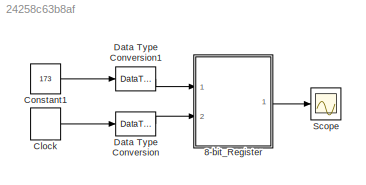
MODEL slx_24258c63b8af
KIND model
CONFIG AbsTol = auto
CONFIG EnableMultiTasking = off
CONFIG FixedStep = 1
CONFIG MaxStep = auto
CONFIG MinStep = auto
CONFIG RelTol = 1e-3
CONFIG SampleTimeConstraint = Unconstrained
CONFIG Solver = FixedStepDiscrete
CONFIG SolverName = FixedStepDiscrete
CONFIG StartTime = 0.0
CONFIG StopTime = 20.0
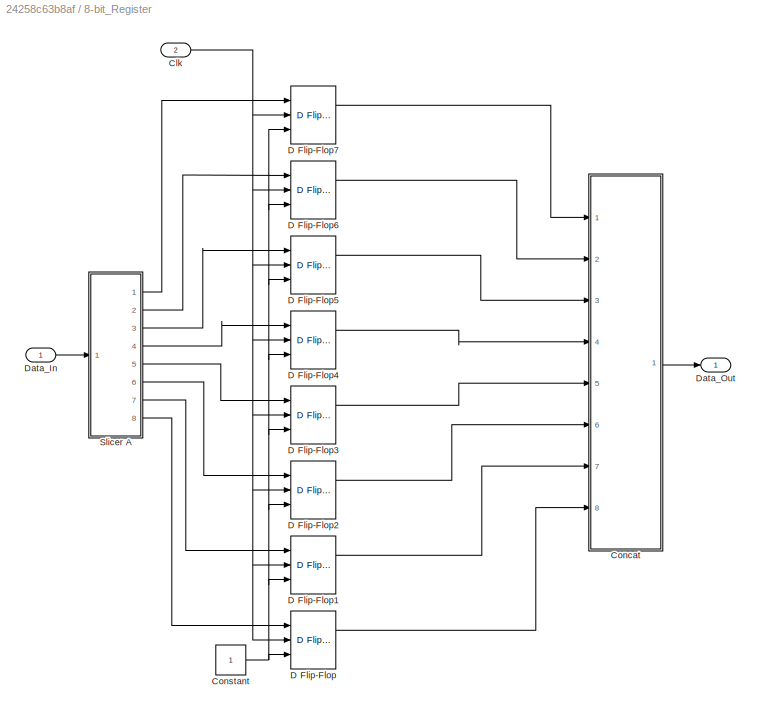
BLOCK [SubSystem] 8-bit_Register
  Ports = [2, 1]
  RequestExecContextInheritance = off
BLOCK [Inport] 8-bit_Register/Clk
  IconDisplay = Port number
  Port = 2
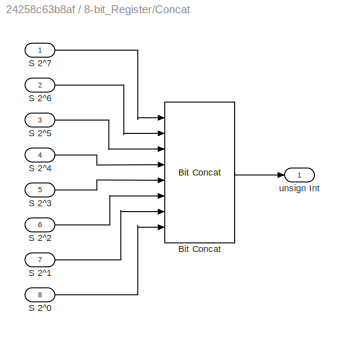
BLOCK [SubSystem] 8-bit_Register/Concat
  Ports = [8, 1]
  RequestExecContextInheritance = off
BLOCK [Reference] 8-bit_Register/Concat/Bit Concat  REF=hdlsllib/Logic and Bit
Operations/Bit Concat
  Ports = [8, 1]
  SourceBlock = hdlsllib/Logic and Bit\nOperations/Bit Concat
  SourceProductBaseCode = HD
  SourceProductName = HDL Coder
  SourceType = Bit Concat
BLOCK [Inport] 8-bit_Register/Concat/S 2^0
  IconDisplay = Port number
  Port = 8
BLOCK [Inport] 8-bit_Register/Concat/S 2^1
  IconDisplay = Port number
  Port = 7
BLOCK [Inport] 8-bit_Register/Concat/S 2^2
  IconDisplay = Port number
  Port = 6
BLOCK [Inport] 8-bit_Register/Concat/S 2^3
  IconDisplay = Port number
  Port = 5
BLOCK [Inport] 8-bit_Register/Concat/S 2^4
  IconDisplay = Port number
  Port = 4
BLOCK [Inport] 8-bit_Register/Concat/S 2^5
  IconDisplay = Port number
  Port = 3
BLOCK [Inport] 8-bit_Register/Concat/S 2^6
  IconDisplay = Port number
  Port = 2
BLOCK [Inport] 8-bit_Register/Concat/S 2^7
  IconDisplay = Port number
BLOCK [Outport] 8-bit_Register/Concat/unsign Int
  IconDisplay = Port number
BLOCK [Constant] 8-bit_Register/Constant
  OutDataTypeStr = boolean
  SampleTime = 1
BLOCK [Reference] 8-bit_Register/D Flip-Flop  REF=simulink_extras/Flip Flops/D Flip-Flop
  Ports = [3, 2]
  SourceBlock = simulink_extras/Flip Flops/D Flip-Flop
  SourceProductBaseCode = SL
  SourceProductName = Simulink
  SourceType = DFlipFlop
BLOCK [Reference] 8-bit_Register/D Flip-Flop1  REF=simulink_extras/Flip Flops/D Flip-Flop
  Ports = [3, 2]
  SourceBlock = simulink_extras/Flip Flops/D Flip-Flop
  SourceProductBaseCode = SL
  SourceProductName = Simulink
  SourceType = DFlipFlop
BLOCK [Reference] 8-bit_Register/D Flip-Flop2  REF=simulink_extras/Flip Flops/D Flip-Flop
  Ports = [3, 2]
  SourceBlock = simulink_extras/Flip Flops/D Flip-Flop
  SourceProductBaseCode = SL
  SourceProductName = Simulink
  SourceType = DFlipFlop
BLOCK [Reference] 8-bit_Register/D Flip-Flop3  REF=simulink_extras/Flip Flops/D Flip-Flop
  Ports = [3, 2]
  SourceBlock = simulink_extras/Flip Flops/D Flip-Flop
  SourceProductBaseCode = SL
  SourceProductName = Simulink
  SourceType = DFlipFlop
BLOCK [Reference] 8-bit_Register/D Flip-Flop4  REF=simulink_extras/Flip Flops/D Flip-Flop
  Ports = [3, 2]
  SourceBlock = simulink_extras/Flip Flops/D Flip-Flop
  SourceProductBaseCode = SL
  SourceProductName = Simulink
  SourceType = DFlipFlop
BLOCK [Reference] 8-bit_Register/D Flip-Flop5  REF=simulink_extras/Flip Flops/D Flip-Flop
  Ports = [3, 2]
  SourceBlock = simulink_extras/Flip Flops/D Flip-Flop
  SourceProductBaseCode = SL
  SourceProductName = Simulink
  SourceType = DFlipFlop
BLOCK [Reference] 8-bit_Register/D Flip-Flop6  REF=simulink_extras/Flip Flops/D Flip-Flop
  Ports = [3, 2]
  SourceBlock = simulink_extras/Flip Flops/D Flip-Flop
  SourceProductBaseCode = SL
  SourceProductName = Simulink
  SourceType = DFlipFlop
BLOCK [Reference] 8-bit_Register/D Flip-Flop7  REF=simulink_extras/Flip Flops/D Flip-Flop
  Ports = [3, 2]
  SourceBlock = simulink_extras/Flip Flops/D Flip-Flop
  SourceProductBaseCode = SL
  SourceProductName = Simulink
  SourceType = DFlipFlop
BLOCK [Inport] 8-bit_Register/Data_In
  IconDisplay = Port number
  OutDataTypeStr = uint8
BLOCK [Outport] 8-bit_Register/Data_Out
  IconDisplay = Port number
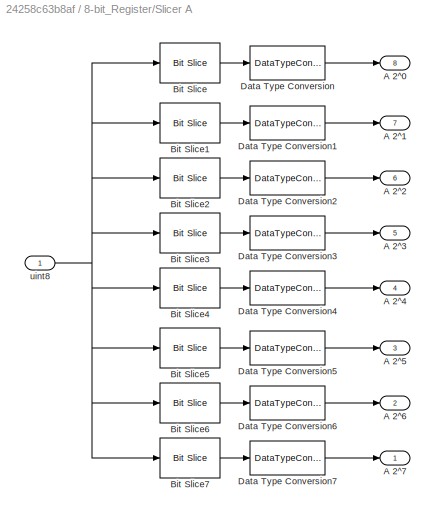
BLOCK [SubSystem] 8-bit_Register/Slicer A
  Ports = [1, 8]
  RequestExecContextInheritance = off
BLOCK [Outport] 8-bit_Register/Slicer A/A 2^0 
  IconDisplay = Port number
  Port = 8
BLOCK [Outport] 8-bit_Register/Slicer A/A 2^1
  IconDisplay = Port number
  Port = 7
BLOCK [Outport] 8-bit_Register/Slicer A/A 2^2
  IconDisplay = Port number
  Port = 6
BLOCK [Outport] 8-bit_Register/Slicer A/A 2^3
  IconDisplay = Port number
  Port = 5
BLOCK [Outport] 8-bit_Register/Slicer A/A 2^4
  IconDisplay = Port number
  Port = 4
BLOCK [Outport] 8-bit_Register/Slicer A/A 2^5
  IconDisplay = Port number
  Port = 3
BLOCK [Outport] 8-bit_Register/Slicer A/A 2^6
  IconDisplay = Port number
  Port = 2
BLOCK [Outport] 8-bit_Register/Slicer A/A 2^7
  IconDisplay = Port number
BLOCK [Reference] 8-bit_Register/Slicer A/Bit Slice  REF=hdlsllib/Logic and Bit
Operations/Bit Slice
  Ports = [1, 1]
  SourceBlock = hdlsllib/Logic and Bit\nOperations/Bit Slice
  SourceProductBaseCode = HD
  SourceProductName = HDL Coder
  SourceType = Bit Slice
BLOCK [Reference] 8-bit_Register/Slicer A/Bit Slice1  REF=hdlsllib/Logic and Bit
Operations/Bit Slice
  Ports = [1, 1]
  SourceBlock = hdlsllib/Logic and Bit\nOperations/Bit Slice
  SourceProductBaseCode = HD
  SourceProductName = HDL Coder
  SourceType = Bit Slice
BLOCK [Reference] 8-bit_Register/Slicer A/Bit Slice2  REF=hdlsllib/Logic and Bit
Operations/Bit Slice
  Ports = [1, 1]
  SourceBlock = hdlsllib/Logic and Bit\nOperations/Bit Slice
  SourceProductBaseCode = HD
  SourceProductName = HDL Coder
  SourceType = Bit Slice
BLOCK [Reference] 8-bit_Register/Slicer A/Bit Slice3  REF=hdlsllib/Logic and Bit
Operations/Bit Slice
  Ports = [1, 1]
  SourceBlock = hdlsllib/Logic and Bit\nOperations/Bit Slice
  SourceProductBaseCode = HD
  SourceProductName = HDL Coder
  SourceType = Bit Slice
BLOCK [Reference] 8-bit_Register/Slicer A/Bit Slice4  REF=hdlsllib/Logic and Bit
Operations/Bit Slice
  Ports = [1, 1]
  SourceBlock = hdlsllib/Logic and Bit\nOperations/Bit Slice
  SourceProductBaseCode = HD
  SourceProductName = HDL Coder
  SourceType = Bit Slice
BLOCK [Reference] 8-bit_Register/Slicer A/Bit Slice5  REF=hdlsllib/Logic and Bit
Operations/Bit Slice
  Ports = [1, 1]
  SourceBlock = hdlsllib/Logic and Bit\nOperations/Bit Slice
  SourceProductBaseCode = HD
  SourceProductName = HDL Coder
  SourceType = Bit Slice
BLOCK [Reference] 8-bit_Register/Slicer A/Bit Slice6  REF=hdlsllib/Logic and Bit
Operations/Bit Slice
  Ports = [1, 1]
  SourceBlock = hdlsllib/Logic and Bit\nOperations/Bit Slice
  SourceProductBaseCode = HD
  SourceProductName = HDL Coder
  SourceType = Bit Slice
BLOCK [Reference] 8-bit_Register/Slicer A/Bit Slice7  REF=hdlsllib/Logic and Bit
Operations/Bit Slice
  Ports = [1, 1]
  SourceBlock = hdlsllib/Logic and Bit\nOperations/Bit Slice
  SourceProductBaseCode = HD
  SourceProductName = HDL Coder
  SourceType = Bit Slice
BLOCK [DataTypeConversion] 8-bit_Register/Slicer A/Data Type Conversion
  OutDataTypeStr = boolean
  RndMeth = Floor
  SaturateOnIntegerOverflow = off
BLOCK [DataTypeConversion] 8-bit_Register/Slicer A/Data Type Conversion1
  OutDataTypeStr = boolean
  RndMeth = Floor
  SaturateOnIntegerOverflow = off
BLOCK [DataTypeConversion] 8-bit_Register/Slicer A/Data Type Conversion2
  OutDataTypeStr = boolean
  RndMeth = Floor
  SaturateOnIntegerOverflow = off
BLOCK [DataTypeConversion] 8-bit_Register/Slicer A/Data Type Conversion3
  OutDataTypeStr = boolean
  RndMeth = Floor
  SaturateOnIntegerOverflow = off
BLOCK [DataTypeConversion] 8-bit_Register/Slicer A/Data Type Conversion4
  OutDataTypeStr = boolean
  RndMeth = Floor
  SaturateOnIntegerOverflow = off
BLOCK [DataTypeConversion] 8-bit_Register/Slicer A/Data Type Conversion5
  OutDataTypeStr = boolean
  RndMeth = Floor
  SaturateOnIntegerOverflow = off
BLOCK [DataTypeConversion] 8-bit_Register/Slicer A/Data Type Conversion6
  OutDataTypeStr = boolean
  RndMeth = Floor
  SaturateOnIntegerOverflow = off
BLOCK [DataTypeConversion] 8-bit_Register/Slicer A/Data Type Conversion7
  OutDataTypeStr = boolean
  RndMeth = Floor
  SaturateOnIntegerOverflow = off
BLOCK [Inport] 8-bit_Register/Slicer A/uint8
  IconDisplay = Port number
  OutDataTypeStr = uint8
  SampleTime = 1
BLOCK [DiscretePulseGenerator] Clock
  Ports = [0, 1]
BLOCK [Constant] Constant1
  Value = 173
BLOCK [DataTypeConversion] Data Type Conversion
  OutDataTypeStr = boolean
  RndMeth = Floor
  SaturateOnIntegerOverflow = off
BLOCK [DataTypeConversion] Data Type Conversion1
  OutDataTypeStr = uint8
  RndMeth = Floor
  SaturateOnIntegerOverflow = off
BLOCK [Scope] Scope
  Floating = off
  NumInputPorts = 1
  Ports = [1]
  ScopeSpecificationString = Simulink.scopes.TimeScopeBlockCfg('CurrentConfiguration', extmgr.ConfigurationSet(extmgr.Configuration('Core','General UI',true),extmgr.Configuration('Core','Source UI',true),extmgr.Configuration('Sources','WiredSimulink',true),extmgr.Configuration('Visuals','Time Domain',true,'SerializedDisplays',{struct('MinYLimReal','-21.625','MaxYLimReal','194.625','YLabelReal','','MinYLimMag','0.00000','MaxYL...<+1361ch>
NET 8-bit_Register/Clk:1 -> 8-bit_Register/D Flip-Flop1:2, 8-bit_Register/D Flip-Flop2:2, 8-bit_Register/D Flip-Flop3:2, 8-bit_Register/D Flip-Flop4:2, 8-bit_Register/D Flip-Flop5:2, 8-bit_Register/D Flip-Flop6:2, 8-bit_Register/D Flip-Flop7:2, 8-bit_Register/D Flip-Flop:2
LINE 8-bit_Register/Concat/Bit Concat:1 -> 8-bit_Register/Concat/unsign Int:1
LINE 8-bit_Register/Concat/S 2^0:1 -> 8-bit_Register/Concat/Bit Concat:8
LINE 8-bit_Register/Concat/S 2^1:1 -> 8-bit_Register/Concat/Bit Concat:7
LINE 8-bit_Register/Concat/S 2^2:1 -> 8-bit_Register/Concat/Bit Concat:6
LINE 8-bit_Register/Concat/S 2^3:1 -> 8-bit_Register/Concat/Bit Concat:5
LINE 8-bit_Register/Concat/S 2^4:1 -> 8-bit_Register/Concat/Bit Concat:4
LINE 8-bit_Register/Concat/S 2^5:1 -> 8-bit_Register/Concat/Bit Concat:3
LINE 8-bit_Register/Concat/S 2^6:1 -> 8-bit_Register/Concat/Bit Concat:2
LINE 8-bit_Register/Concat/S 2^7:1 -> 8-bit_Register/Concat/Bit Concat:1
LINE 8-bit_Register/Concat:1 -> 8-bit_Register/Data_Out:1
NET 8-bit_Register/Constant:1 -> 8-bit_Register/D Flip-Flop1:3, 8-bit_Register/D Flip-Flop2:3, 8-bit_Register/D Flip-Flop3:3, 8-bit_Register/D Flip-Flop4:3, 8-bit_Register/D Flip-Flop5:3, 8-bit_Register/D Flip-Flop6:3, 8-bit_Register/D Flip-Flop7:3, 8-bit_Register/D Flip-Flop:3
LINE 8-bit_Register/D Flip-Flop1:1 -> 8-bit_Register/Concat:7
LINE 8-bit_Register/D Flip-Flop2:1 -> 8-bit_Register/Concat:6
LINE 8-bit_Register/D Flip-Flop3:1 -> 8-bit_Register/Concat:5
LINE 8-bit_Register/D Flip-Flop4:1 -> 8-bit_Register/Concat:4
LINE 8-bit_Register/D Flip-Flop5:1 -> 8-bit_Register/Concat:3
LINE 8-bit_Register/D Flip-Flop6:1 -> 8-bit_Register/Concat:2
LINE 8-bit_Register/D Flip-Flop7:1 -> 8-bit_Register/Concat:1
LINE 8-bit_Register/D Flip-Flop:1 -> 8-bit_Register/Concat:8
LINE 8-bit_Register/Data_In:1 -> 8-bit_Register/Slicer A:1
LINE 8-bit_Register/Slicer A/Bit Slice1:1 -> 8-bit_Register/Slicer A/Data Type Conversion1:1
LINE 8-bit_Register/Slicer A/Bit Slice2:1 -> 8-bit_Register/Slicer A/Data Type Conversion2:1
LINE 8-bit_Register/Slicer A/Bit Slice3:1 -> 8-bit_Register/Slicer A/Data Type Conversion3:1
LINE 8-bit_Register/Slicer A/Bit Slice4:1 -> 8-bit_Register/Slicer A/Data Type Conversion4:1
LINE 8-bit_Register/Slicer A/Bit Slice5:1 -> 8-bit_Register/Slicer A/Data Type Conversion5:1
LINE 8-bit_Register/Slicer A/Bit Slice6:1 -> 8-bit_Register/Slicer A/Data Type Conversion6:1
LINE 8-bit_Register/Slicer A/Bit Slice7:1 -> 8-bit_Register/Slicer A/Data Type Conversion7:1
LINE 8-bit_Register/Slicer A/Bit Slice:1 -> 8-bit_Register/Slicer A/Data Type Conversion:1
LINE 8-bit_Register/Slicer A/Data Type Conversion1:1 -> 8-bit_Register/Slicer A/A 2^1:1
LINE 8-bit_Register/Slicer A/Data Type Conversion2:1 -> 8-bit_Register/Slicer A/A 2^2:1
LINE 8-bit_Register/Slicer A/Data Type Conversion3:1 -> 8-bit_Register/Slicer A/A 2^3:1
LINE 8-bit_Register/Slicer A/Data Type Conversion4:1 -> 8-bit_Register/Slicer A/A 2^4:1
LINE 8-bit_Register/Slicer A/Data Type Conversion5:1 -> 8-bit_Register/Slicer A/A 2^5:1
LINE 8-bit_Register/Slicer A/Data Type Conversion6:1 -> 8-bit_Register/Slicer A/A 2^6:1
LINE 8-bit_Register/Slicer A/Data Type Conversion7:1 -> 8-bit_Register/Slicer A/A 2^7:1
LINE 8-bit_Register/Slicer A/Data Type Conversion:1 -> 8-bit_Register/Slicer A/A 2^0 :1
NET 8-bit_Register/Slicer A/uint8:1 -> 8-bit_Register/Slicer A/Bit Slice1:1, 8-bit_Register/Slicer A/Bit Slice2:1, 8-bit_Register/Slicer A/Bit Slice3:1, 8-bit_Register/Slicer A/Bit Slice4:1, 8-bit_Register/Slicer A/Bit Slice5:1, 8-bit_Register/Slicer A/Bit Slice6:1, 8-bit_Register/Slicer A/Bit Slice7:1, 8-bit_Register/Slicer A/Bit Slice:1
LINE 8-bit_Register/Slicer A:1 -> 8-bit_Register/D Flip-Flop7:1
LINE 8-bit_Register/Slicer A:2 -> 8-bit_Register/D Flip-Flop6:1
LINE 8-bit_Register/Slicer A:3 -> 8-bit_Register/D Flip-Flop5:1
LINE 8-bit_Register/Slicer A:4 -> 8-bit_Register/D Flip-Flop4:1
LINE 8-bit_Register/Slicer A:5 -> 8-bit_Register/D Flip-Flop3:1
LINE 8-bit_Register/Slicer A:6 -> 8-bit_Register/D Flip-Flop2:1
LINE 8-bit_Register/Slicer A:7 -> 8-bit_Register/D Flip-Flop1:1
LINE 8-bit_Register/Slicer A:8 -> 8-bit_Register/D Flip-Flop:1
LINE 8-bit_Register:1 -> Scope:1
LINE Clock:1 -> Data Type Conversion:1
LINE Constant1:1 -> Data Type Conversion1:1
LINE Data Type Conversion1:1 -> 8-bit_Register:1
LINE Data Type Conversion:1 -> 8-bit_Register:2
note: NET lines group one-source signal fan-out (src -> all destinations, sorted); 1:1 wires keep LINE
